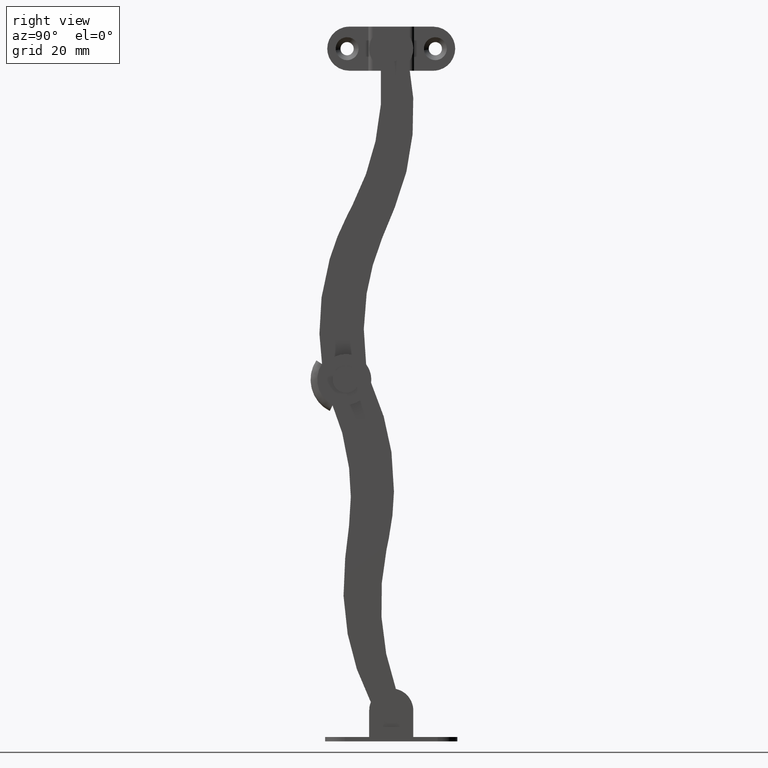
[diagram: clean part render]
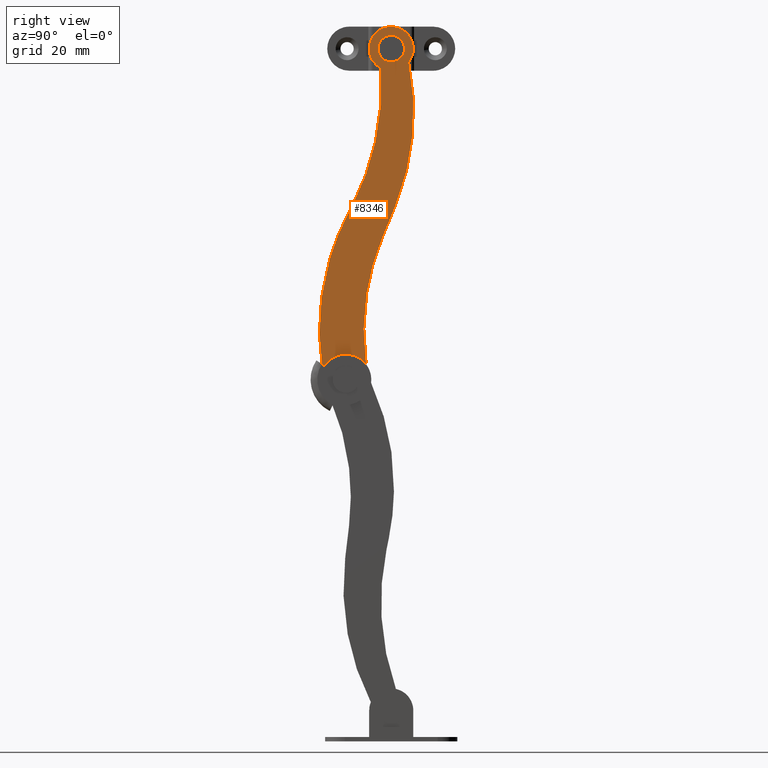
[diagram: same view with one face highlighted and labeled with its STEP entity id]
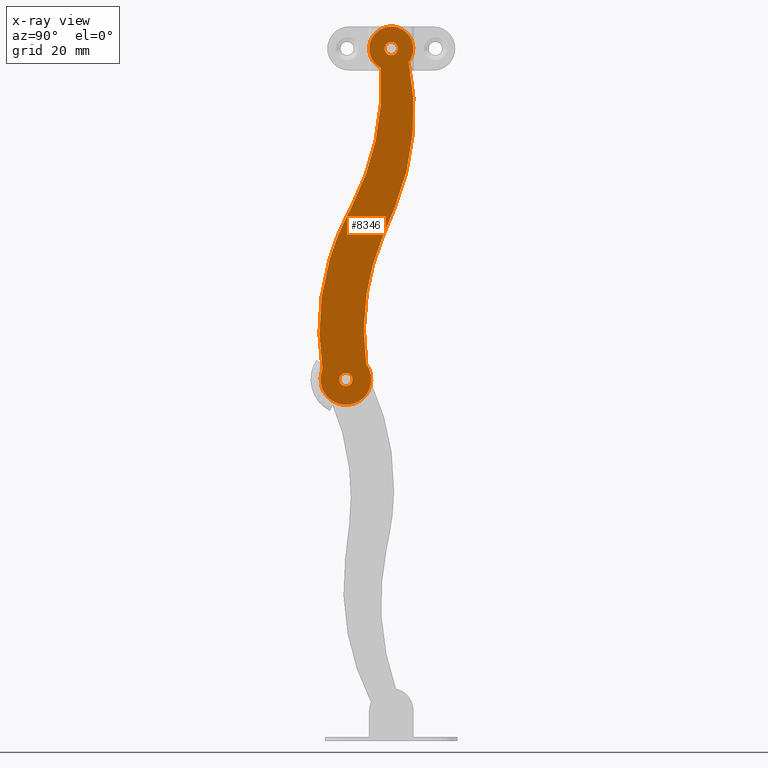
[diagram: x-ray of the same camera — body ghosted, the highlighted face saturated]
A machine part, right view. The second image highlights one B-rep face of the part: STEP entity #8346.
The next image is the same camera in x-ray: the body ghosted, the highlighted face saturated — about 0% of this face is hidden behind the body in this view.
In plain terms, the highlighted face is a freeform B-spline surface patch.
Its self-contained STEP definition (entity closure, byte-faithful):
#7867=CARTESIAN_POINT('',(5.0,-0.000002438745962,76.500029999998006));
#7868=VERTEX_POINT('',#7867);
#7869=CARTESIAN_POINT('',(5.0,1.495375810390700,75.117721076171037));
#7870=VERTEX_POINT('',#7869);
#7871=CARTESIAN_POINT('',(5.0,-0.000002438745962,76.500029999998006));
#7872=CARTESIAN_POINT('',(5.0,1.386583298527447,76.500032255498894));
#7873=CARTESIAN_POINT('',(5.000000000000001,1.495375810390700,75.117721076171037));
#7881=(BOUNDED_CURVE()B_SPLINE_CURVE(2,(#7871,#7872,#7873),.UNSPECIFIED.,.F.,.U.)B_SPLINE_CURVE_WITH_KNOTS((3,3),(0.0,0.236331300606630),.UNSPECIFIED.)CURVE()GEOMETRIC_REPRESENTATION_ITEM()RATIONAL_B_SPLINE_CURVE((1.0,0.723120658635818,0.969723356117269))REPRESENTATION_ITEM(''));
#7882=EDGE_CURVE('',#7868,#7870,#7881,.T.);
#7884=CARTESIAN_POINT('',(5.000000000000001,-1.495375807908420,74.882338923828968));
#7885=VERTEX_POINT('',#7884);
#7886=CARTESIAN_POINT('',(5.000000000000001,-1.495375807908420,74.882338923828968));
#7887=CARTESIAN_POINT('',(4.999999999999999,-1.499999902889522,74.941092399386946));
#7888=CARTESIAN_POINT('',(5.0,-1.499999998756876,75.000027560012896));
#7889=CARTESIAN_POINT('',(5.000000000000001,-1.500002438743978,76.500027560010906));
#7890=CARTESIAN_POINT('',(5.0,-0.000002438745962,76.500029999998006));
#7898=(BOUNDED_CURVE()B_SPLINE_CURVE(2,(#7886,#7887,#7888,#7889,#7890),.UNSPECIFIED.,.F.,.U.)B_SPLINE_CURVE_WITH_KNOTS((3,2,3),(0.736331300606631,0.750000000000000,1.0),.UNSPECIFIED.)CURVE()GEOMETRIC_REPRESENTATION_ITEM()RATIONAL_B_SPLINE_CURVE((0.969723356117272,0.983986122550731,1.0,0.707106781186548,1.0))REPRESENTATION_ITEM(''));
#7899=EDGE_CURVE('',#7885,#7868,#7898,.T.);
#7966=CARTESIAN_POINT('',(5.0,0.000002441228243,73.500030000001985));
#7967=VERTEX_POINT('',#7966);
#7968=CARTESIAN_POINT('',(4.999999999999999,1.495375810390700,75.117721076171037));
#7969=CARTESIAN_POINT('',(4.999999999999999,1.499999905371802,75.058967600613059));
#7970=CARTESIAN_POINT('',(5.0,1.500000001239156,75.000032439987095));
#7971=CARTESIAN_POINT('',(5.000000000000001,1.500002441226258,73.500032439989084));
#7972=CARTESIAN_POINT('',(5.0,0.000002441228243,73.500030000001985));
#7980=(BOUNDED_CURVE()B_SPLINE_CURVE(2,(#7968,#7969,#7970,#7971,#7972),.UNSPECIFIED.,.F.,.U.)B_SPLINE_CURVE_WITH_KNOTS((3,2,3),(0.236331300606630,0.250000000000000,0.500000000000000),.UNSPECIFIED.)CURVE()GEOMETRIC_REPRESENTATION_ITEM()RATIONAL_B_SPLINE_CURVE((0.969723356117270,0.983986122550729,1.0,0.707106781186548,1.0))REPRESENTATION_ITEM(''));
#7981=EDGE_CURVE('',#7870,#7967,#7980,.T.);
#8015=CARTESIAN_POINT('',(5.0,0.000002441228243,73.500030000001985));
#8016=CARTESIAN_POINT('',(5.0,-1.386583296045182,73.500027744501097));
#8017=CARTESIAN_POINT('',(5.000000000000001,-1.495375807908420,74.882338923828968));
#8025=(BOUNDED_CURVE()B_SPLINE_CURVE(2,(#8015,#8016,#8017),.UNSPECIFIED.,.F.,.U.)B_SPLINE_CURVE_WITH_KNOTS((3,3),(0.500000000000000,0.736331300606631),.UNSPECIFIED.)CURVE()GEOMETRIC_REPRESENTATION_ITEM()RATIONAL_B_SPLINE_CURVE((1.0,0.723120658635816,0.969723356117273))REPRESENTATION_ITEM(''));
#8026=EDGE_CURVE('',#7967,#7885,#8025,.T.);
#8049=CARTESIAN_POINT('',(5.0,-10.270723439328240,1.499983292947609));
#8050=VERTEX_POINT('',#8049);
#8051=CARTESIAN_POINT('',(5.0,-8.775345190191581,0.117674369120645));
#8052=VERTEX_POINT('',#8051);
#8053=CARTESIAN_POINT('',(5.0,-10.270723439328240,1.499983292947609));
#8054=CARTESIAN_POINT('',(5.0,-8.884137702054835,1.499985548448487));
#8055=CARTESIAN_POINT('',(5.0,-8.775345190191581,0.117674369120645));
#8063=(BOUNDED_CURVE()B_SPLINE_CURVE(2,(#8053,#8054,#8055),.UNSPECIFIED.,.F.,.U.)B_SPLINE_CURVE_WITH_KNOTS((3,3),(0.0,0.236331300606629),.UNSPECIFIED.)CURVE()GEOMETRIC_REPRESENTATION_ITEM()RATIONAL_B_SPLINE_CURVE((1.0,0.723120658635819,0.969723356117268))REPRESENTATION_ITEM(''));
#8064=EDGE_CURVE('',#8050,#8052,#8063,.T.);
#8066=CARTESIAN_POINT('',(5.0,-11.766096808490699,-0.117707783221457));
#8067=VERTEX_POINT('',#8066);
#8068=CARTESIAN_POINT('',(5.0,-11.766096808490698,-0.117707783221457));
#8069=CARTESIAN_POINT('',(5.0,-11.770720903471803,-0.058954307663466));
#8070=CARTESIAN_POINT('',(5.0,-11.770720999339151,-0.000019147037509));
#8071=CARTESIAN_POINT('',(5.000000000000001,-11.770723439326257,1.499980852960507));
#8072=CARTESIAN_POINT('',(5.0,-10.270723439328240,1.499983292947609));
#8080=(BOUNDED_CURVE()B_SPLINE_CURVE(2,(#8068,#8069,#8070,#8071,#8072),.UNSPECIFIED.,.F.,.U.)B_SPLINE_CURVE_WITH_KNOTS((3,2,3),(0.736331300606629,0.750000000000000,1.0),.UNSPECIFIED.)CURVE()GEOMETRIC_REPRESENTATION_ITEM()RATIONAL_B_SPLINE_CURVE((0.969723356117268,0.983986122550729,1.0,0.707106781186548,1.0))REPRESENTATION_ITEM(''));
#8081=EDGE_CURVE('',#8067,#8050,#8080,.T.);
#8148=CARTESIAN_POINT('',(5.0,-10.270718559354041,-1.500016707048422));
#8149=VERTEX_POINT('',#8148);
#8150=CARTESIAN_POINT('',(5.0,-8.775345190191581,0.117674369120645));
#8151=CARTESIAN_POINT('',(5.0,-8.770721095210480,0.058920893562654));
#8152=CARTESIAN_POINT('',(5.0,-8.770720999343125,-0.000014267063304));
#8153=CARTESIAN_POINT('',(5.000000000000001,-8.770718559356022,-1.500014267061320));
#8154=CARTESIAN_POINT('',(5.0,-10.270718559354041,-1.500016707048422));
#8162=(BOUNDED_CURVE()B_SPLINE_CURVE(2,(#8150,#8151,#8152,#8153,#8154),.UNSPECIFIED.,.F.,.U.)B_SPLINE_CURVE_WITH_KNOTS((3,2,3),(0.236331300606629,0.250000000000000,0.500000000000000),.UNSPECIFIED.)CURVE()GEOMETRIC_REPRESENTATION_ITEM()RATIONAL_B_SPLINE_CURVE((0.969723356117268,0.983986122550729,1.0,0.707106781186548,1.0))REPRESENTATION_ITEM(''));
#8163=EDGE_CURVE('',#8052,#8149,#8162,.T.);
#8197=CARTESIAN_POINT('',(5.0,-10.270718559354041,-1.500016707048422));
#8198=CARTESIAN_POINT('',(5.0,-11.657304296627441,-1.500018962549299));
#8199=CARTESIAN_POINT('',(5.0,-11.766096808490699,-0.117707783221457));
#8207=(BOUNDED_CURVE()B_SPLINE_CURVE(2,(#8197,#8198,#8199),.UNSPECIFIED.,.F.,.U.)B_SPLINE_CURVE_WITH_KNOTS((3,3),(0.500000000000000,0.736331300606629),.UNSPECIFIED.)CURVE()GEOMETRIC_REPRESENTATION_ITEM()RATIONAL_B_SPLINE_CURVE((1.0,0.723120658635819,0.969723356117268))REPRESENTATION_ITEM(''));
#8208=EDGE_CURVE('',#8149,#8067,#8207,.T.);
#8213=CARTESIAN_POINT('',(5.0,6.142073594768544,-10.032303994613340));
#8214=CARTESIAN_POINT('',(5.0,-17.344699739617909,-10.032342199562670));
#8215=CARTESIAN_POINT('',(5.0,6.141920186397696,84.276619215700904));
#8216=CARTESIAN_POINT('',(5.0,-17.344853147988751,84.276581010751556));
#8217=B_SPLINE_SURFACE_WITH_KNOTS('',1,1,((#8213,#8215),(#8214,#8216)),.UNSPECIFIED.,.F.,.F.,.U.,(2,2),(2,2),(0.0,23.486773334417521),(0.0,94.308923210439005),.UNSPECIFIED.);
#8218=CARTESIAN_POINT('',(5.0,-2.050450771121305,32.095769741751347));
#8219=VERTEX_POINT('',#8218);
#8220=CARTESIAN_POINT('',(5.0,0.772672652989653,38.943437256826549));
#8221=VERTEX_POINT('',#8220);
#8222=CARTESIAN_POINT('',(5.0,-2.050450771121305,32.095769741751347));
#8223=CARTESIAN_POINT('',(5.0,0.772672652989653,38.943437256826549));
#8224=QUASI_UNIFORM_CURVE('',1,(#8222,#8223),.UNSPECIFIED.,.F.,.U.);
#8225=EDGE_CURVE('',#8219,#8221,#8224,.T.);
#8226=ORIENTED_EDGE('',*,*,#8225,.T.);
#8227=CARTESIAN_POINT('',(5.0,3.950967539661150,71.935594269783593));
#8228=VERTEX_POINT('',#8227);
#8229=CARTESIAN_POINT('',(5.0,3.950967539661114,71.935594269783564));
#8230=CARTESIAN_POINT('',(5.0,7.374510176940061,54.956618957090484));
#8231=CARTESIAN_POINT('',(5.0,0.772672652989616,38.943437256826563));
#8239=(BOUNDED_CURVE()B_SPLINE_CURVE(2,(#8229,#8230,#8231),.UNSPECIFIED.,.F.,.U.)CURVE()GEOMETRIC_REPRESENTATION_ITEM()QUASI_UNIFORM_CURVE()RATIONAL_B_SPLINE_CURVE((1.0,0.956800705288628,1.0))REPRESENTATION_ITEM(''));
#8240=EDGE_CURVE('',#8228,#8221,#8239,.T.);
#8241=ORIENTED_EDGE('',*,*,#8240,.F.);
#8242=CARTESIAN_POINT('',(5.0,-2.331776838043510,70.577061190246511));
#8243=VERTEX_POINT('',#8242);
#8244=CARTESIAN_POINT('',(5.0,-2.331776838043486,70.577061190246539));
#8245=CARTESIAN_POINT('',(4.999999999999999,-5.428736908927973,72.209845408238877));
#8246=CARTESIAN_POINT('',(5.0,-4.953660168389422,75.678483191833024));
#8247=CARTESIAN_POINT('',(4.999999999999999,-4.478583427850871,79.147120975427185));
#8248=CARTESIAN_POINT('',(5.0,-1.056647656777006,79.887054460155909));
#8249=CARTESIAN_POINT('',(4.999999999999999,2.365288114296860,80.626987944884647));
#8250=CARTESIAN_POINT('',(5.0,4.230982618309629,77.664500813963372));
#8251=CARTESIAN_POINT('',(4.999999999999999,6.096677122322402,74.702013683042082));
#8252=CARTESIAN_POINT('',(5.0,3.950967539661196,71.935594269783564));
#8260=(BOUNDED_CURVE()B_SPLINE_CURVE(2,(#8244,#8245,#8246,#8247,#8248,#8249,#8250,#8251,#8252),.UNSPECIFIED.,.F.,.U.)B_SPLINE_CURVE_WITH_KNOTS((3,2,2,2,3),(0.0,0.250000000000000,0.500000000000000,0.750000000000000,1.0),.UNSPECIFIED.)CURVE()GEOMETRIC_REPRESENTATION_ITEM()RATIONAL_B_SPLINE_CURVE((1.0,0.819153351722273,1.0,0.819153351722273,1.0,0.819153351722273,1.0,0.819153351722273,1.0))REPRESENTATION_ITEM(''));
#8261=EDGE_CURVE('',#8243,#8228,#8260,.T.);
#8262=ORIENTED_EDGE('',*,*,#8261,.F.);
#8263=CARTESIAN_POINT('',(5.0,-8.788180767627191,39.547546857406097));
#8264=VERTEX_POINT('',#8263);
#8265=CARTESIAN_POINT('',(5.0,-2.331776838043580,70.577061190246482));
#8266=CARTESIAN_POINT('',(5.0,-1.233660950928792,54.162114118175253));
#8267=CARTESIAN_POINT('',(5.0,-8.788180767627239,39.547546857406140));
#8275=(BOUNDED_CURVE()B_SPLINE_CURVE(2,(#8265,#8266,#8267),.UNSPECIFIED.,.F.,.U.)CURVE()GEOMETRIC_REPRESENTATION_ITEM()QUASI_UNIFORM_CURVE()RATIONAL_B_SPLINE_CURVE((1.0,0.963250642647690,1.0))REPRESENTATION_ITEM(''));
#8276=EDGE_CURVE('',#8243,#8264,#8275,.T.);
#8277=ORIENTED_EDGE('',*,*,#8276,.T.);
#8278=CARTESIAN_POINT('',(5.0,-9.916137780198090,37.365461869784603));
#8279=VERTEX_POINT('',#8278);
#8280=CARTESIAN_POINT('',(5.0,-8.788180767627191,39.547546857406097));
#8281=CARTESIAN_POINT('',(5.0,-9.916137780198090,37.365461869784603));
#8282=QUASI_UNIFORM_CURVE('',1,(#8280,#8281),.UNSPECIFIED.,.F.,.U.);
#8283=EDGE_CURVE('',#8264,#8279,#8282,.T.);
#8284=ORIENTED_EDGE('',*,*,#8283,.T.);
#8285=CARTESIAN_POINT('',(5.0,-15.571525406341550,2.227980743290380));
#8286=VERTEX_POINT('',#8285);
#8287=CARTESIAN_POINT('',(5.0,-15.571525406341550,2.227980743290354));
#8288=CARTESIAN_POINT('',(5.0,-18.517373117497385,20.725974464371870));
#8289=CARTESIAN_POINT('',(5.0,-9.916137780198092,37.365461869784554));
#8297=(BOUNDED_CURVE()B_SPLINE_CURVE(2,(#8287,#8288,#8289),.UNSPECIFIED.,.F.,.U.)CURVE()GEOMETRIC_REPRESENTATION_ITEM()QUASI_UNIFORM_CURVE()RATIONAL_B_SPLINE_CURVE((1.0,0.950016428060900,1.0))REPRESENTATION_ITEM(''));
#8298=EDGE_CURVE('',#8286,#8279,#8297,.T.);
#8299=ORIENTED_EDGE('',*,*,#8298,.F.);
#8300=CARTESIAN_POINT('',(5.0,-5.690815570444240,3.476614746290705));
#8301=VERTEX_POINT('',#8300);
#8302=CARTESIAN_POINT('',(5.0,-5.690815570444243,3.476614746290705));
#8303=CARTESIAN_POINT('',(5.000000000000001,-2.773575637027626,-0.366381897949427));
#8304=CARTESIAN_POINT('',(5.0,-6.051614845789300,-3.906632027895421));
#8305=CARTESIAN_POINT('',(5.000000000000001,-9.329654054550975,-7.446882157841420));
#8306=CARTESIAN_POINT('',(5.0,-13.385345573985310,-4.833402038163849));
#8307=CARTESIAN_POINT('',(5.000000000000001,-17.441037093419652,-2.219921918486278));
#8308=CARTESIAN_POINT('',(5.0,-15.571525406341550,2.227980743290380));
#8316=(BOUNDED_CURVE()B_SPLINE_CURVE(2,(#8302,#8303,#8304,#8305,#8306,#8307,#8308),.UNSPECIFIED.,.F.,.U.)B_SPLINE_CURVE_WITH_KNOTS((3,2,2,3),(0.0,0.333333333333333,0.666666666666667,1.0),.UNSPECIFIED.)CURVE()GEOMETRIC_REPRESENTATION_ITEM()RATIONAL_B_SPLINE_CURVE((1.0,0.766044468813316,1.0,0.766044468813316,1.0,0.766044468813316,1.0))REPRESENTATION_ITEM(''));
#8317=EDGE_CURVE('',#8301,#8286,#8316,.T.);
#8318=ORIENTED_EDGE('',*,*,#8317,.F.);
#8319=CARTESIAN_POINT('',(5.0,-5.690815570444240,3.476614746290705));
#8320=CARTESIAN_POINT('',(5.0,-7.759754058910759,18.280889546708604));
#8321=CARTESIAN_POINT('',(5.0,-2.050450771121336,32.095769741751319));
#8329=(BOUNDED_CURVE()B_SPLINE_CURVE(2,(#8319,#8320,#8321),.UNSPECIFIED.,.F.,.U.)CURVE()GEOMETRIC_REPRESENTATION_ITEM()QUASI_UNIFORM_CURVE()RATIONAL_B_SPLINE_CURVE((1.0,0.964994399481614,1.0))REPRESENTATION_ITEM(''));
#8330=EDGE_CURVE('',#8301,#8219,#8329,.T.);
#8331=ORIENTED_EDGE('',*,*,#8330,.T.);
#8332=EDGE_LOOP('',(#8226,#8241,#8262,#8277,#8284,#8299,#8318,#8331));
#8333=FACE_OUTER_BOUND('',#8332,.T.);
#8334=ORIENTED_EDGE('',*,*,#8208,.T.);
#8335=ORIENTED_EDGE('',*,*,#8081,.T.);
#8336=ORIENTED_EDGE('',*,*,#8064,.T.);
#8337=ORIENTED_EDGE('',*,*,#8163,.T.);
#8338=EDGE_LOOP('',(#8334,#8335,#8336,#8337));
#8339=FACE_BOUND('',#8338,.T.);
#8340=ORIENTED_EDGE('',*,*,#8026,.T.);
#8341=ORIENTED_EDGE('',*,*,#7899,.T.);
#8342=ORIENTED_EDGE('',*,*,#7882,.T.);
#8343=ORIENTED_EDGE('',*,*,#7981,.T.);
#8344=EDGE_LOOP('',(#8340,#8341,#8342,#8343));
#8345=FACE_BOUND('',#8344,.T.);
#8346=ADVANCED_FACE('',(#8333,#8339,#8345),#8217,.F.);